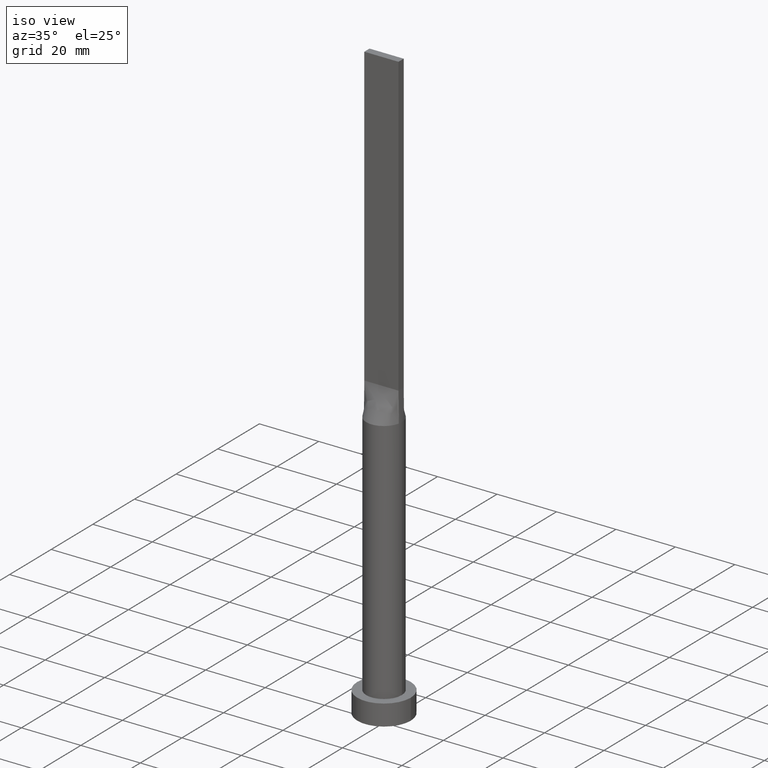
[diagram: clean part render]
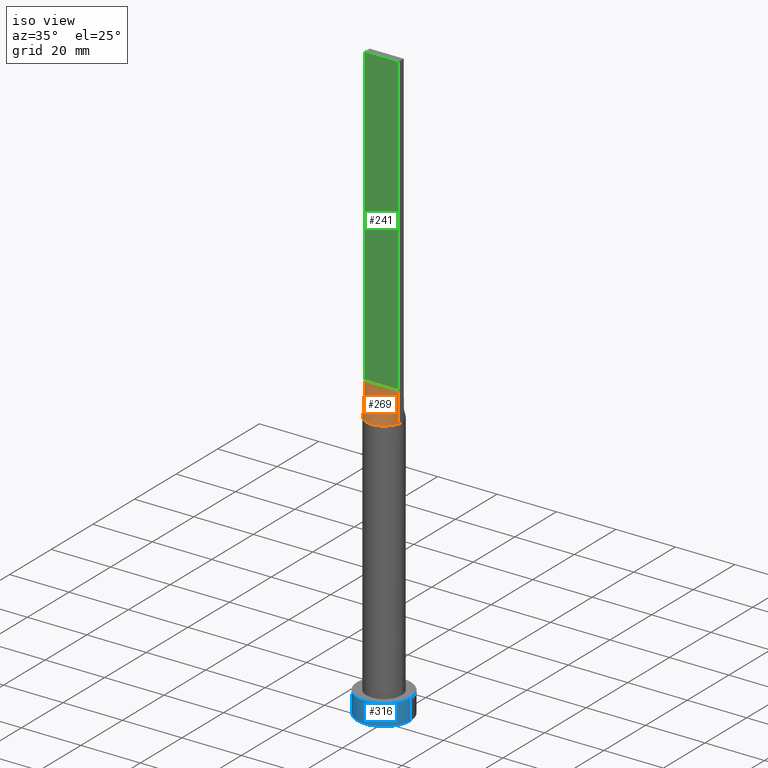
[diagram: same view with three faces highlighted in distinct colors, each labeled with its STEP entity id]
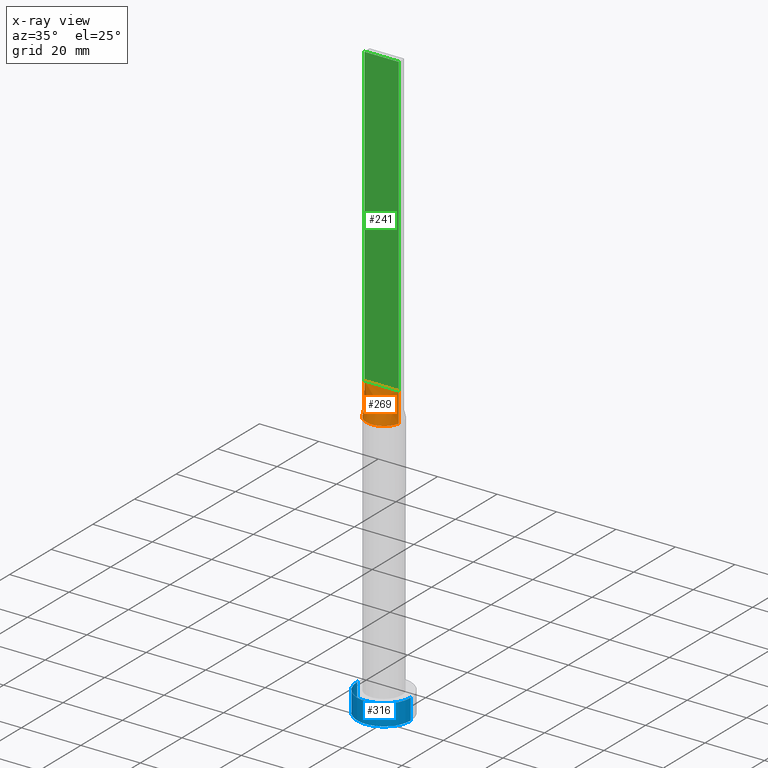
[diagram: x-ray of the same camera — body ghosted, the three highlighted faces saturated]
A machine part, iso view with three faces highlighted in distinct colors.
The next image is the same camera in x-ray (body ghosted, the three faces saturated) — at least one of them is partly hidden behind the body in this view.
Their STEP definitions:

[orange] entity #269 — the highlighted face is a freeform B-spline surface patch.
#7 = DIRECTION ( 'NONE',  ( 1.000000000000000000, 0.000000000000000000, 0.000000000000000000 ) ) ;
#17 = CARTESIAN_POINT ( 'NONE',  ( 2.395833333333337478, -1.249999999999999778, 100.0000000000000142 ) ) ;
#42 = LINE ( 'NONE', #139, #202 ) ;
#43 = CARTESIAN_POINT ( 'NONE',  ( -1.916666666666660523, -1.249999999999999334, 100.0000000000000000 ) ) ;
#48 = CARTESIAN_POINT ( 'NONE',  ( -3.833333333333330817, -1.249999999999999112, 100.0000000000000142 ) ) ;
#60 = LINE ( 'NONE', #257, #541 ) ;
#61 = ORIENTED_EDGE ( 'NONE', *, *, #461, .T. ) ;
#68 = CARTESIAN_POINT ( 'NONE',  ( 3.833333333333336146, -1.249999999999999778, 100.0000000000000284 ) ) ;
#81 = CARTESIAN_POINT ( 'NONE',  ( 3.037647739454303331, -5.231880992812857123, 90.00000000000007105 ) ) ;
#93 = CARTESIAN_POINT ( 'NONE',  ( -4.659826596530313836, -3.842755878357677179, 90.00000000000002842 ) ) ;
#103 = VERTEX_POINT ( 'NONE', #554 ) ;
#112 = CARTESIAN_POINT ( 'NONE',  ( 4.659826596530312948, -3.842755878357678512, 90.00000000000001421 ) ) ;
#118 = CARTESIAN_POINT ( 'NONE',  ( 4.791666666666667851, -1.249999999999999778, 100.0000000000000000 ) ) ;
#123 = VECTOR ( 'NONE', #314, 1000.000000000000114 ) ;
#128 = ORIENTED_EDGE ( 'NONE', *, *, #476, .F. ) ;
#130 = EDGE_CURVE ( 'NONE', #492, #103, #60, .T. ) ;
#131 = CARTESIAN_POINT ( 'NONE',  ( 1.197916666666672292, -1.249999999999999778, 100.0000000000000142 ) ) ;
#135 = CARTESIAN_POINT ( 'NONE',  ( -4.791666666666666075, -1.249999999999999112, 100.0000000000000142 ) ) ;
#139 = CARTESIAN_POINT ( 'NONE',  ( -5.750000000000000000, -1.249999999999999112, 100.0000000000000000 ) ) ;
#142 = VERTEX_POINT ( 'NONE', #158 ) ;
#158 = CARTESIAN_POINT ( 'NONE',  ( 5.863058287509796074, -1.274577880478293901, 90.00000000000001421 ) ) ;
#175 = CARTESIAN_POINT ( 'NONE',  ( 0.9583333333333390325, -1.249999999999999556, 100.0000000000000000 ) ) ;
#189 = CARTESIAN_POINT ( 'NONE',  ( -0.2395833333333274584, -1.249999999999999556, 100.0000000000000142 ) ) ;
#196 = DIRECTION ( 'NONE',  ( 1.000000000000000000, -5.656706986880892860E-17, 0.000000000000000000 ) ) ;
#197 = CARTESIAN_POINT ( 'NONE',  ( 5.038190104264874236, -3.311355329404293890, 90.00000000000002842 ) ) ;
#202 = VECTOR ( 'NONE', #196, 1000.000000000000000 ) ;
#209 = CARTESIAN_POINT ( 'NONE',  ( 5.586898165904734093, -2.266054396544146865, 90.00000000000004263 ) ) ;
#219 = CARTESIAN_POINT ( 'NONE',  ( -0.4791666666666606345, -1.249999999999999334, 100.0000000000000000 ) ) ;
#225 = ORIENTED_EDGE ( 'NONE', *, *, #406, .T. ) ;
#233 = CARTESIAN_POINT ( 'NONE',  ( -1.197916666666660079, -1.249999999999999334, 100.0000000000000000 ) ) ;
#237 = CARTESIAN_POINT ( 'NONE',  ( -2.395833333333328152, -1.249999999999999112, 100.0000000000000000 ) ) ;
#243 = CARTESIAN_POINT ( 'NONE',  ( 3.354166666666669183, -1.249999999999999778, 100.0000000000000284 ) ) ;
#249 = CARTESIAN_POINT ( 'NONE',  ( 5.270833333333333925, -1.249999999999999778, 100.0000000000000000 ) ) ;
#257 = CARTESIAN_POINT ( 'NONE',  ( -5.806529091768402928, -1.262288932993130386, 95.00000000000000000 ) ) ;
#268 = VERTEX_POINT ( 'NONE', #468 ) ;
#269 = ADVANCED_FACE ( 'NONE', ( #464 ), #439, .T. ) ;
#273 = CARTESIAN_POINT ( 'NONE',  ( 1.916666666666671626, -1.249999999999999778, 100.0000000000000142 ) ) ;
#280 = CARTESIAN_POINT ( 'NONE',  ( -3.037647739454305551, -5.231880992812856235, 90.00000000000002842 ) ) ;
#287 = CARTESIAN_POINT ( 'NONE',  ( -3.660567483996338911, -4.804269179125217448, 90.00000000000002842 ) ) ;
#314 = DIRECTION ( 'NONE',  ( -0.01130506171853803803, 0.002457622112726073286, 0.9999330755971076456 ) ) ;
#315 = CARTESIAN_POINT ( 'NONE',  ( -5.586898165904734093, -2.266054396544145533, 90.00000000000002842 ) ) ;
#320 = CARTESIAN_POINT ( 'NONE',  ( -5.750000000000000000, -1.249999999999999112, 100.0000000000000000 ) ) ;
#322 = LINE ( 'NONE', #556, #123 ) ;
#323 = CARTESIAN_POINT ( 'NONE',  ( -3.354166666666663410, -1.249999999999999112, 100.0000000000000000 ) ) ;
#325 = CARTESIAN_POINT ( 'NONE',  ( -5.863058183536806744, -1.274577865986261438, 90.00000000000001421 ) ) ;
#330 = CARTESIAN_POINT ( 'NONE',  ( 3.660567483996338023, -4.804269179125219225, 90.00000000000005684 ) ) ;
#343 = CARTESIAN_POINT ( 'NONE',  ( 0.000000000000000000, 0.000000000000000000, 90.00000000000001421 ) ) ;
#356 = CARTESIAN_POINT ( 'NONE',  ( -5.270833333333333037, -1.249999999999999112, 100.0000000000000142 ) ) ;
#368 = CARTESIAN_POINT ( 'NONE',  ( 0.4029827085191214908, -6.000000000000000888, 90.00000000000002842 ) ) ;
#377 = CARTESIAN_POINT ( 'NONE',  ( 5.863058183536805856, -1.274577865986266101, 90.00000000000001421 ) ) ;
#385 = DIRECTION ( 'NONE',  ( -0.01130506171853812650, -0.002457622112725682973, -0.9999330755971076456 ) ) ;
#402 = CARTESIAN_POINT ( 'NONE',  ( 0.4791666666666724028, -1.249999999999999556, 100.0000000000000142 ) ) ;
#406 = EDGE_CURVE ( 'NONE', #103, #142, #486, .T. ) ;
#415 = CARTESIAN_POINT ( 'NONE',  ( -1.587717880441008589, -5.799853445840304822, 90.00000000000001421 ) ) ;
#421 = CARTESIAN_POINT ( 'NONE',  ( -0.4029827085191233227, -6.000000000000000000, 90.00000000000004263 ) ) ;
#432 = AXIS2_PLACEMENT_3D ( 'NONE', #343, #532, #7 ) ;
#438 = CARTESIAN_POINT ( 'NONE',  ( 5.750000000000000000, -1.249999999999999778, 100.0000000000000000 ) ) ;
#439 = B_SPLINE_SURFACE_WITH_KNOTS ( 'NONE', 3, 1, ( 
 ( #325, #456 ),
 ( #547, #356 ),
 ( #315, #135 ),
 ( #499, #48 ),
 ( #93, #323 ),
 ( #287, #237 ),
 ( #280, #43 ),
 ( #452, #233 ),
 ( #415, #513 ),
 ( #600, #219 ),
 ( #421, #189 ),
 ( #368, #557 ),
 ( #494, #402 ),
 ( #508, #175 ),
 ( #543, #131 ),
 ( #81, #273 ),
 ( #330, #17 ),
 ( #112, #243 ),
 ( #197, #68 ),
 ( #209, #118 ),
 ( #528, #249 ),
 ( #377, #438 ) ),
 .UNSPECIFIED., .F., .F., .F.,
 ( 4, 2, 2, 2, 2, 2, 2, 2, 2, 2, 4 ),
 ( 2, 2 ),
 ( 0.000000000000000000, 0.1250000000000000278, 0.2500000000000000555, 0.3750000000000001110, 0.4375000000000000555, 0.5000000000000000000, 0.5625000000000000000, 0.6250000000000000000, 0.7499999999999998890, 0.8750000000000000000, 1.000000000000000000 ),
 ( 0.000000000000000000, 1.000000000000000000 ),
 .UNSPECIFIED. ) ;
#452 = CARTESIAN_POINT ( 'NONE',  ( -1.966519853258819506, -5.681792876789066860, 90.00000000000004263 ) ) ;
#456 = CARTESIAN_POINT ( 'NONE',  ( -5.750000000000000000, -1.249999999999999112, 100.0000000000000000 ) ) ;
#461 = EDGE_CURVE ( 'NONE', #142, #268, #322, .T. ) ;
#464 = FACE_OUTER_BOUND ( 'NONE', #471, .T. ) ;
#468 = CARTESIAN_POINT ( 'NONE',  ( 5.750000000000000000, -1.249999999999999778, 100.0000000000000000 ) ) ;
#471 = EDGE_LOOP ( 'NONE', ( #225, #61, #128, #540 ) ) ;
#476 = EDGE_CURVE ( 'NONE', #492, #268, #42, .T. ) ;
#486 = CIRCLE ( 'NONE', #432, 6.000000000000000888 ) ;
#492 = VERTEX_POINT ( 'NONE', #320 ) ;
#494 = CARTESIAN_POINT ( 'NONE',  ( 0.8058840496048923496, -5.959001506938069070, 90.00000000000001421 ) ) ;
#499 = CARTESIAN_POINT ( 'NONE',  ( -5.038190104264876013, -3.311355329404291670, 90.00000000000005684 ) ) ;
#508 = CARTESIAN_POINT ( 'NONE',  ( 1.587717880441006368, -5.799853445840308375, 90.00000000000001421 ) ) ;
#513 = CARTESIAN_POINT ( 'NONE',  ( -0.9583333333333269310, -1.249999999999999334, 100.0000000000000000 ) ) ;
#528 = CARTESIAN_POINT ( 'NONE',  ( 5.759267569818393717, -1.752014689090956256, 90.00000000000002842 ) ) ;
#532 = DIRECTION ( 'NONE',  ( 0.000000000000000000, 0.000000000000000000, 1.000000000000000000 ) ) ;
#540 = ORIENTED_EDGE ( 'NONE', *, *, #130, .T. ) ;
#541 = VECTOR ( 'NONE', #385, 1000.000000000000114 ) ;
#543 = CARTESIAN_POINT ( 'NONE',  ( 1.966519853258817729, -5.681792876789067748, 90.00000000000001421 ) ) ;
#547 = CARTESIAN_POINT ( 'NONE',  ( -5.759267569818394605, -1.752014689090954480, 90.00000000000004263 ) ) ;
#554 = CARTESIAN_POINT ( 'NONE',  ( -5.863065408737084816, -1.274579424051652365, 90.00000000000001421 ) ) ;
#556 = CARTESIAN_POINT ( 'NONE',  ( 5.806529091768402928, -1.262288932993132828, 95.00000000000000000 ) ) ;
#557 = CARTESIAN_POINT ( 'NONE',  ( 0.2395833333333390325, -1.249999999999999556, 100.0000000000000142 ) ) ;
#600 = CARTESIAN_POINT ( 'NONE',  ( -0.8058840496048947921, -5.959001506938068182, 90.00000000000005684 ) ) ;

[blue] entity #316 — the highlighted cylindrical surface (edge-blend (fillet) strip) has radius 9 mm, axis along (-0, -0, -1).
#5 = EDGE_CURVE ( 'NONE', #99, #77, #498, .T. ) ;
#11 = DIRECTION ( 'NONE',  ( 1.000000000000000000, 0.000000000000000000, 0.000000000000000000 ) ) ;
#13 = DIRECTION ( 'NONE',  ( -0.000000000000000000, -0.000000000000000000, -1.000000000000000000 ) ) ;
#21 = CYLINDRICAL_SURFACE ( 'NONE', #396, 9.000000000000000000 ) ;
#28 = ORIENTED_EDGE ( 'NONE', *, *, #358, .T. ) ;
#41 = DIRECTION ( 'NONE',  ( 1.000000000000000000, 0.000000000000000000, 0.000000000000000000 ) ) ;
#54 = DIRECTION ( 'NONE',  ( 0.000000000000000000, 0.000000000000000000, 1.000000000000000000 ) ) ;
#77 = VERTEX_POINT ( 'NONE', #451 ) ;
#78 = LINE ( 'NONE', #97, #482 ) ;
#91 = CARTESIAN_POINT ( 'NONE',  ( 9.000000000000000000, 1.102182119232617714E-15, 0.000000000000000000 ) ) ;
#97 = CARTESIAN_POINT ( 'NONE',  ( -9.000000000000000000, 0.000000000000000000, 7.000000000000000000 ) ) ;
#99 = VERTEX_POINT ( 'NONE', #310 ) ;
#108 = ORIENTED_EDGE ( 'NONE', *, *, #200, .T. ) ;
#113 = CARTESIAN_POINT ( 'NONE',  ( 9.000000000000000000, 1.102182119232617714E-15, 7.000000000000000000 ) ) ;
#122 = EDGE_CURVE ( 'NONE', #77, #470, #205, .T. ) ;
#136 = ORIENTED_EDGE ( 'NONE', *, *, #122, .F. ) ;
#164 = FACE_OUTER_BOUND ( 'NONE', #179, .T. ) ;
#165 = VECTOR ( 'NONE', #13, 1000.000000000000000 ) ;
#179 = EDGE_LOOP ( 'NONE', ( #136, #369, #108, #28 ) ) ;
#182 = DIRECTION ( 'NONE',  ( -0.000000000000000000, -0.000000000000000000, -1.000000000000000000 ) ) ;
#200 = EDGE_CURVE ( 'NONE', #99, #445, #78, .T. ) ;
#205 = LINE ( 'NONE', #113, #165 ) ;
#214 = DIRECTION ( 'NONE',  ( -1.000000000000000000, 0.000000000000000000, 0.000000000000000000 ) ) ;
#215 = CIRCLE ( 'NONE', #365, 9.000000000000000000 ) ;
#253 = AXIS2_PLACEMENT_3D ( 'NONE', #571, #505, #41 ) ;
#256 = CARTESIAN_POINT ( 'NONE',  ( 0.000000000000000000, 0.000000000000000000, 0.000000000000000000 ) ) ;
#310 = CARTESIAN_POINT ( 'NONE',  ( -9.000000000000000000, 0.000000000000000000, 7.000000000000000000 ) ) ;
#316 = ADVANCED_FACE ( 'NONE', ( #164 ), #21, .T. ) ;
#334 = DIRECTION ( 'NONE',  ( -0.000000000000000000, -0.000000000000000000, -1.000000000000000000 ) ) ;
#358 = EDGE_CURVE ( 'NONE', #445, #470, #215, .T. ) ;
#365 = AXIS2_PLACEMENT_3D ( 'NONE', #256, #54, #11 ) ;
#369 = ORIENTED_EDGE ( 'NONE', *, *, #5, .F. ) ;
#383 = CARTESIAN_POINT ( 'NONE',  ( 0.000000000000000000, 0.000000000000000000, 7.000000000000000000 ) ) ;
#396 = AXIS2_PLACEMENT_3D ( 'NONE', #383, #334, #214 ) ;
#445 = VERTEX_POINT ( 'NONE', #561 ) ;
#451 = CARTESIAN_POINT ( 'NONE',  ( 9.000000000000000000, 1.102182119232617714E-15, 7.000000000000000000 ) ) ;
#470 = VERTEX_POINT ( 'NONE', #91 ) ;
#482 = VECTOR ( 'NONE', #182, 1000.000000000000000 ) ;
#498 = CIRCLE ( 'NONE', #253, 9.000000000000000000 ) ;
#505 = DIRECTION ( 'NONE',  ( 0.000000000000000000, 0.000000000000000000, 1.000000000000000000 ) ) ;
#561 = CARTESIAN_POINT ( 'NONE',  ( -9.000000000000000000, 0.000000000000000000, 0.000000000000000000 ) ) ;
#571 = CARTESIAN_POINT ( 'NONE',  ( 0.000000000000000000, 0.000000000000000000, 7.000000000000000000 ) ) ;

[green] entity #241 — the highlighted planar face has unit normal (0, 1, -0).
#38 = CARTESIAN_POINT ( 'NONE',  ( -5.750000000000000000, -1.249999999999999112, 200.0000000000000000 ) ) ;
#39 = DIRECTION ( 'NONE',  ( 1.000000000000000000, -5.656706986880892860E-17, 0.000000000000000000 ) ) ;
#42 = LINE ( 'NONE', #139, #202 ) ;
#72 = EDGE_CURVE ( 'NONE', #229, #268, #593, .T. ) ;
#73 = EDGE_CURVE ( 'NONE', #559, #229, #80, .T. ) ;
#80 = LINE ( 'NONE', #272, #125 ) ;
#115 = ORIENTED_EDGE ( 'NONE', *, *, #72, .F. ) ;
#125 = VECTOR ( 'NONE', #39, 1000.000000000000000 ) ;
#139 = CARTESIAN_POINT ( 'NONE',  ( -5.750000000000000000, -1.249999999999999112, 100.0000000000000000 ) ) ;
#140 = CARTESIAN_POINT ( 'NONE',  ( 5.750000000000000000, -1.249999999999999778, 200.0000000000000000 ) ) ;
#141 = CARTESIAN_POINT ( 'NONE',  ( -5.750000000000000000, -1.249999999999999112, 200.0000000000000000 ) ) ;
#178 = DIRECTION ( 'NONE',  ( -1.000000000000000000, 5.656706986880892860E-17, 0.000000000000000000 ) ) ;
#181 = DIRECTION ( 'NONE',  ( -0.000000000000000000, -0.000000000000000000, -1.000000000000000000 ) ) ;
#192 = CARTESIAN_POINT ( 'NONE',  ( 5.750000000000000000, -1.249999999999999778, 200.0000000000000000 ) ) ;
#196 = DIRECTION ( 'NONE',  ( 1.000000000000000000, -5.656706986880892860E-17, 0.000000000000000000 ) ) ;
#202 = VECTOR ( 'NONE', #196, 1000.000000000000000 ) ;
#228 = CARTESIAN_POINT ( 'NONE',  ( -5.750000000000000000, -1.249999999999999112, 200.0000000000000000 ) ) ;
#229 = VERTEX_POINT ( 'NONE', #192 ) ;
#235 = AXIS2_PLACEMENT_3D ( 'NONE', #228, #504, #178 ) ;
#241 = ADVANCED_FACE ( 'NONE', ( #590 ), #562, .F. ) ;
#258 = EDGE_CURVE ( 'NONE', #559, #492, #552, .T. ) ;
#268 = VERTEX_POINT ( 'NONE', #468 ) ;
#272 = CARTESIAN_POINT ( 'NONE',  ( -5.750000000000000000, -1.249999999999999112, 200.0000000000000000 ) ) ;
#285 = ORIENTED_EDGE ( 'NONE', *, *, #73, .F. ) ;
#320 = CARTESIAN_POINT ( 'NONE',  ( -5.750000000000000000, -1.249999999999999112, 100.0000000000000000 ) ) ;
#332 = EDGE_LOOP ( 'NONE', ( #346, #115, #285, #475 ) ) ;
#346 = ORIENTED_EDGE ( 'NONE', *, *, #476, .T. ) ;
#403 = VECTOR ( 'NONE', #181, 1000.000000000000000 ) ;
#459 = DIRECTION ( 'NONE',  ( -0.000000000000000000, -0.000000000000000000, -1.000000000000000000 ) ) ;
#468 = CARTESIAN_POINT ( 'NONE',  ( 5.750000000000000000, -1.249999999999999778, 100.0000000000000000 ) ) ;
#475 = ORIENTED_EDGE ( 'NONE', *, *, #258, .T. ) ;
#476 = EDGE_CURVE ( 'NONE', #492, #268, #42, .T. ) ;
#492 = VERTEX_POINT ( 'NONE', #320 ) ;
#504 = DIRECTION ( 'NONE',  ( 5.656706986880892860E-17, 1.000000000000000000, -0.000000000000000000 ) ) ;
#552 = LINE ( 'NONE', #141, #583 ) ;
#559 = VERTEX_POINT ( 'NONE', #38 ) ;
#562 = PLANE ( 'NONE',  #235 ) ;
#583 = VECTOR ( 'NONE', #459, 1000.000000000000000 ) ;
#590 = FACE_OUTER_BOUND ( 'NONE', #332, .T. ) ;
#593 = LINE ( 'NONE', #140, #403 ) ;